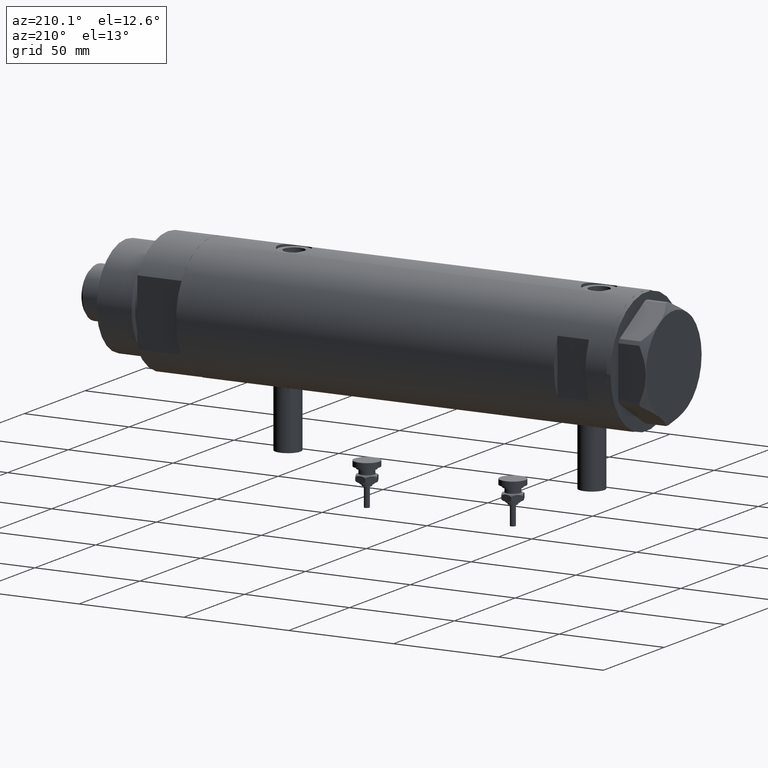
[diagram: clean part render]
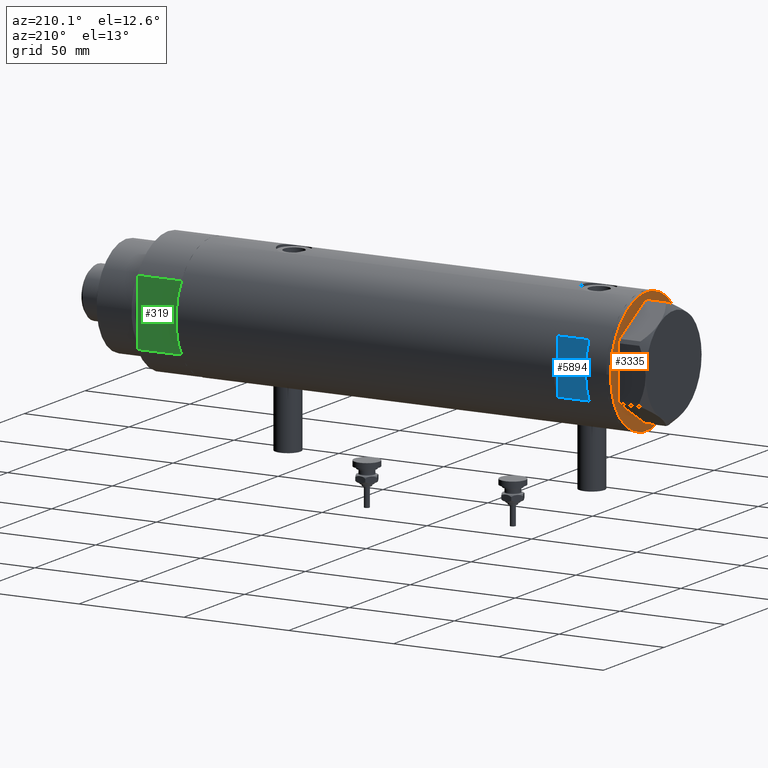
[diagram: same view with three faces highlighted in distinct colors, each labeled with its STEP entity id]
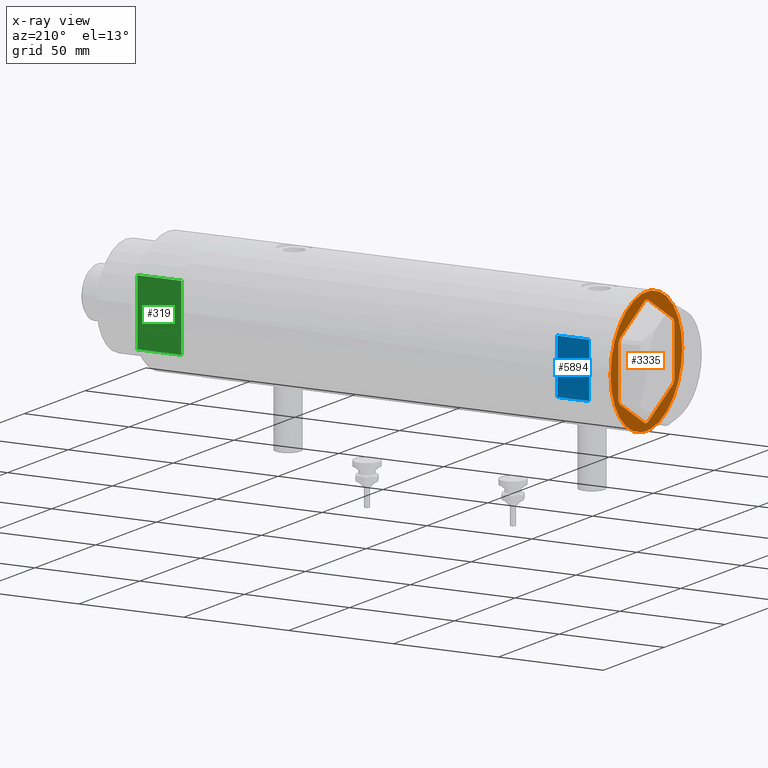
[diagram: x-ray of the same camera — body ghosted, the three highlighted faces saturated]
A machine part, auxiliary view with three faces highlighted in distinct colors.
The next image is the same camera in x-ray (body ghosted, the three faces saturated) — at least one of them is partly hidden behind the body in this view.
Their STEP definitions:

[orange] entity #3335 — the highlighted planar face has unit normal (1, 0, -0).
#26 = DIRECTION ( 'NONE',  ( 0.8660254037844345998, 0.5000000000000069944, 0.000000000000000000 ) ) ;
#56 = DIRECTION ( 'NONE',  ( 1.000000000000000000, 3.576939520802682722E-15, -0.000000000000000000 ) ) ;
#119 = CARTESIAN_POINT ( 'NONE',  ( -0.9699484522385893870, 25.99811238272273073, 0.000000000000000000 ) ) ;
#161 = CIRCLE ( 'NONE', #2635, 29.50000000000000355 ) ;
#218 = CARTESIAN_POINT ( 'NONE',  ( -22.51502577388055215, -12.99905619136159629, 0.000000000000000000 ) ) ;
#280 = VERTEX_POINT ( 'NONE', #383 ) ;
#332 = CARTESIAN_POINT ( 'NONE',  ( -22.51502577388069781, 12.99905619136134050, 0.000000000000000000 ) ) ;
#341 = CARTESIAN_POINT ( 'NONE',  ( -22.99999999999999289, 12.15905619136131754, 0.000000000000000000 ) ) ;
#358 = EDGE_CURVE ( 'NONE', #1223, #2414, #1478, .T. ) ;
#381 = VECTOR ( 'NONE', #26, 999.9999999999998863 ) ;
#383 = CARTESIAN_POINT ( 'NONE',  ( 23.00000000000007461, -12.15905619136117721, 0.000000000000000000 ) ) ;
#564 = DIRECTION ( 'NONE',  ( 0.000000000000000000, 0.000000000000000000, -1.000000000000000000 ) ) ;
#660 = DIRECTION ( 'NONE',  ( -1.032024811306395780E-14, 1.000000000000000000, 0.000000000000000000 ) ) ;
#666 = CARTESIAN_POINT ( 'NONE',  ( 29.50000000000000355, 0.000000000000000000, 0.000000000000000000 ) ) ;
#685 = CARTESIAN_POINT ( 'NONE',  ( 0.000000000000000000, 0.000000000000000000, 0.000000000000000000 ) ) ;
#710 = ORIENTED_EDGE ( 'NONE', *, *, #2628, .T. ) ;
#730 = VERTEX_POINT ( 'NONE', #5211 ) ;
#736 = EDGE_CURVE ( 'NONE', #1748, #2856, #3399, .T. ) ;
#758 = CARTESIAN_POINT ( 'NONE',  ( 22.51502577388080795, -12.99905619136115398, 0.000000000000000000 ) ) ;
#770 = PLANE ( 'NONE',  #2689 ) ;
#785 = CARTESIAN_POINT ( 'NONE',  ( -22.03005154776141339, 13.83905619136132792, 0.000000000000000000 ) ) ;
#817 = LINE ( 'NONE', #332, #3166 ) ;
#856 = EDGE_CURVE ( 'NONE', #5147, #4534, #817, .T. ) ;
#872 = VECTOR ( 'NONE', #660, 1000.000000000000000 ) ;
#1010 = CARTESIAN_POINT ( 'NONE',  ( -9.299367564803055752E-14, 25.99811238272273428, 0.000000000000000000 ) ) ;
#1058 = DIRECTION ( 'NONE',  ( 0.000000000000000000, 0.000000000000000000, -1.000000000000000000 ) ) ;
#1073 = CARTESIAN_POINT ( 'NONE',  ( 22.03005154776153773, -13.83905619136115561, 0.000000000000000000 ) ) ;
#1101 = CARTESIAN_POINT ( 'NONE',  ( 22.99999999999981171, 13.27905619136164184, 0.000000000000000000 ) ) ;
#1112 = DIRECTION ( 'NONE',  ( 0.000000000000000000, 0.000000000000000000, -1.000000000000000000 ) ) ;
#1185 = CARTESIAN_POINT ( 'NONE',  ( 0.9699484522387533669, -25.99811238272273428, 0.000000000000000000 ) ) ;
#1192 = EDGE_CURVE ( 'NONE', #280, #3393, #4356, .T. ) ;
#1216 = VERTEX_POINT ( 'NONE', #5295 ) ;
#1223 = VERTEX_POINT ( 'NONE', #1185 ) ;
#1430 = EDGE_CURVE ( 'NONE', #4836, #2856, #2297, .T. ) ;
#1449 = EDGE_CURVE ( 'NONE', #1748, #3393, #5140, .T. ) ;
#1475 = VECTOR ( 'NONE', #5493, 1000.000000000000227 ) ;
#1478 = LINE ( 'NONE', #5027, #381 ) ;
#1483 = DIRECTION ( 'NONE',  ( -1.000000000000000000, 0.000000000000000000, 0.000000000000000000 ) ) ;
#1510 = CARTESIAN_POINT ( 'NONE',  ( 0.000000000000000000, 0.000000000000000000, 0.000000000000000000 ) ) ;
#1580 = LINE ( 'NONE', #2726, #5173 ) ;
#1606 = EDGE_CURVE ( 'NONE', #3618, #5374, #4505, .T. ) ;
#1649 = ORIENTED_EDGE ( 'NONE', *, *, #1449, .T. ) ;
#1681 = DIRECTION ( 'NONE',  ( -0.4999999999999915623, -0.8660254037844434816, -0.000000000000000000 ) ) ;
#1687 = LINE ( 'NONE', #3517, #4212 ) ;
#1701 = VECTOR ( 'NONE', #3864, 1000.000000000000000 ) ;
#1748 = VERTEX_POINT ( 'NONE', #2231 ) ;
#1849 = ORIENTED_EDGE ( 'NONE', *, *, #2260, .F. ) ;
#1869 = DIRECTION ( 'NONE',  ( -1.000000000000000000, 0.000000000000000000, -0.000000000000000000 ) ) ;
#1876 = CARTESIAN_POINT ( 'NONE',  ( 0.9699484522385886098, 25.99811238272273783, 0.000000000000000000 ) ) ;
#1882 = LINE ( 'NONE', #5093, #1475 ) ;
#1991 = CARTESIAN_POINT ( 'NONE',  ( 22.99999999999982236, 12.15905619136166571, 0.000000000000000000 ) ) ;
#2104 = CARTESIAN_POINT ( 'NONE',  ( -0.9699484522383873264, -25.99811238272275205, 0.000000000000000000 ) ) ;
#2146 = EDGE_CURVE ( 'NONE', #280, #2414, #4860, .T. ) ;
#2231 = CARTESIAN_POINT ( 'NONE',  ( 22.03005154776124996, 13.83905619136162635, 0.000000000000000000 ) ) ;
#2256 = ORIENTED_EDGE ( 'NONE', *, *, #856, .T. ) ;
#2260 = EDGE_CURVE ( 'NONE', #1216, #3334, #3625, .T. ) ;
#2297 = LINE ( 'NONE', #1010, #4878 ) ;
#2414 = VERTEX_POINT ( 'NONE', #1073 ) ;
#2484 = LINE ( 'NONE', #218, #1701 ) ;
#2628 = EDGE_CURVE ( 'NONE', #1223, #3334, #1687, .T. ) ;
#2635 = AXIS2_PLACEMENT_3D ( 'NONE', #685, #564, #1483 ) ;
#2689 = AXIS2_PLACEMENT_3D ( 'NONE', #1510, #1058, #1869 ) ;
#2726 = CARTESIAN_POINT ( 'NONE',  ( -22.99999999999999645, 13.27905619136132032, 0.000000000000000000 ) ) ;
#2816 = EDGE_CURVE ( 'NONE', #5147, #730, #1580, .T. ) ;
#2856 = VERTEX_POINT ( 'NONE', #1876 ) ;
#2892 = DIRECTION ( 'NONE',  ( -1.000000000000000000, 0.000000000000000000, 0.000000000000000000 ) ) ;
#2908 = DIRECTION ( 'NONE',  ( -0.8660254037844415942, 0.4999999999999949485, 0.000000000000000000 ) ) ;
#2966 = ORIENTED_EDGE ( 'NONE', *, *, #1430, .T. ) ;
#2973 = ORIENTED_EDGE ( 'NONE', *, *, #5706, .T. ) ;
#3072 = VECTOR ( 'NONE', #4146, 999.9999999999998863 ) ;
#3166 = VECTOR ( 'NONE', #5763, 1000.000000000000227 ) ;
#3334 = VERTEX_POINT ( 'NONE', #2104 ) ;
#3335 = ADVANCED_FACE ( 'NONE', ( #3936, #5316 ), #770, .F. ) ;
#3393 = VERTEX_POINT ( 'NONE', #1991 ) ;
#3399 = LINE ( 'NONE', #1101, #5834 ) ;
#3491 = CARTESIAN_POINT ( 'NONE',  ( 0.000000000000000000, 0.000000000000000000, 0.000000000000000000 ) ) ;
#3517 = CARTESIAN_POINT ( 'NONE',  ( 1.859873512960652550E-13, -25.99811238272274139, 0.000000000000000000 ) ) ;
#3618 = VERTEX_POINT ( 'NONE', #4794 ) ;
#3625 = LINE ( 'NONE', #4156, #3925 ) ;
#3665 = ORIENTED_EDGE ( 'NONE', *, *, #1606, .F. ) ;
#3708 = DIRECTION ( 'NONE',  ( 0.8660254037844415942, -0.4999999999999950595, 0.000000000000000000 ) ) ;
#3759 = ORIENTED_EDGE ( 'NONE', *, *, #2146, .T. ) ;
#3864 = DIRECTION ( 'NONE',  ( -0.5000000000000086597, 0.8660254037844337116, -0.000000000000000000 ) ) ;
#3865 = ORIENTED_EDGE ( 'NONE', *, *, #358, .F. ) ;
#3925 = VECTOR ( 'NONE', #3708, 1000.000000000000000 ) ;
#3936 = FACE_BOUND ( 'NONE', #4072, .T. ) ;
#4067 = ORIENTED_EDGE ( 'NONE', *, *, #2816, .F. ) ;
#4072 = EDGE_LOOP ( 'NONE', ( #4165, #1649, #5841, #3759, #3865, #710, #1849, #2973, #4067, #2256, #4583, #2966 ) ) ;
#4146 = DIRECTION ( 'NONE',  ( 0.5000000000000086597, -0.8660254037844337116, -0.000000000000000000 ) ) ;
#4156 = CARTESIAN_POINT ( 'NONE',  ( -22.99999999999990408, -13.27905619136147841, 0.000000000000000000 ) ) ;
#4165 = ORIENTED_EDGE ( 'NONE', *, *, #736, .F. ) ;
#4212 = VECTOR ( 'NONE', #5345, 1000.000000000000000 ) ;
#4356 = LINE ( 'NONE', #5718, #872 ) ;
#4505 = CIRCLE ( 'NONE', #5563, 29.50000000000000355 ) ;
#4513 = VECTOR ( 'NONE', #1681, 1000.000000000000000 ) ;
#4534 = VERTEX_POINT ( 'NONE', #785 ) ;
#4553 = DIRECTION ( 'NONE',  ( 3.527173405730720141E-15, -1.000000000000000000, 0.000000000000000000 ) ) ;
#4583 = ORIENTED_EDGE ( 'NONE', *, *, #4785, .F. ) ;
#4785 = EDGE_CURVE ( 'NONE', #4836, #4534, #1882, .T. ) ;
#4794 = CARTESIAN_POINT ( 'NONE',  ( -29.50000000000000355, 3.612708057484692393E-15, 0.000000000000000000 ) ) ;
#4836 = VERTEX_POINT ( 'NONE', #119 ) ;
#4860 = LINE ( 'NONE', #758, #4513 ) ;
#4878 = VECTOR ( 'NONE', #56, 1000.000000000000000 ) ;
#5003 = EDGE_LOOP ( 'NONE', ( #5592, #3665 ) ) ;
#5027 = CARTESIAN_POINT ( 'NONE',  ( 1.854543075583504180E-13, -26.55811238272274366, 0.000000000000000000 ) ) ;
#5093 = CARTESIAN_POINT ( 'NONE',  ( 0.000000000000000000, 26.55811238272274366, 0.000000000000000000 ) ) ;
#5140 = LINE ( 'NONE', #5571, #3072 ) ;
#5147 = VERTEX_POINT ( 'NONE', #341 ) ;
#5173 = VECTOR ( 'NONE', #4553, 1000.000000000000000 ) ;
#5211 = CARTESIAN_POINT ( 'NONE',  ( -22.99999999999990763, -12.15905619136148985, 0.000000000000000000 ) ) ;
#5295 = CARTESIAN_POINT ( 'NONE',  ( -22.03005154776132102, -13.83905619136147536, 0.000000000000000000 ) ) ;
#5316 = FACE_OUTER_BOUND ( 'NONE', #5003, .T. ) ;
#5345 = DIRECTION ( 'NONE',  ( -1.000000000000000000, -7.153879041605523216E-15, -0.000000000000000000 ) ) ;
#5374 = VERTEX_POINT ( 'NONE', #666 ) ;
#5493 = DIRECTION ( 'NONE',  ( -0.8660254037844380415, -0.5000000000000008882, 0.000000000000000000 ) ) ;
#5563 = AXIS2_PLACEMENT_3D ( 'NONE', #3491, #1112, #2892 ) ;
#5571 = CARTESIAN_POINT ( 'NONE',  ( 22.51502577388055926, 12.99905619136160162, 0.000000000000000000 ) ) ;
#5592 = ORIENTED_EDGE ( 'NONE', *, *, #5761, .F. ) ;
#5706 = EDGE_CURVE ( 'NONE', #1216, #730, #2484, .T. ) ;
#5718 = CARTESIAN_POINT ( 'NONE',  ( 23.00000000000008527, -13.27905619136115867, 0.000000000000000000 ) ) ;
#5761 = EDGE_CURVE ( 'NONE', #5374, #3618, #161, .T. ) ;
#5763 = DIRECTION ( 'NONE',  ( 0.4999999999999986677, 0.8660254037844392627, -0.000000000000000000 ) ) ;
#5834 = VECTOR ( 'NONE', #2908, 999.9999999999998863 ) ;
#5841 = ORIENTED_EDGE ( 'NONE', *, *, #1192, .F. ) ;

[blue] entity #5894 — the highlighted planar face has unit normal (0, -1, -0).
#39 = EDGE_CURVE ( 'NONE', #2123, #5801, #963, .T. ) ;
#134 = LINE ( 'NONE', #1142, #5722 ) ;
#343 = DIRECTION ( 'NONE',  ( 0.000000000000000000, 0.000000000000000000, -1.000000000000000000 ) ) ;
#412 = CARTESIAN_POINT ( 'NONE',  ( -12.96148139681573319, 26.49999999999998934, 92.59999999999999432 ) ) ;
#715 = DIRECTION ( 'NONE',  ( 1.000000000000000000, -0.000000000000000000, -0.000000000000000000 ) ) ;
#882 = CARTESIAN_POINT ( 'NONE',  ( -12.96148139681573319, 26.49999999999999645, -102.5999999999999943 ) ) ;
#934 = CARTESIAN_POINT ( 'NONE',  ( 12.96148139681573319, 26.49999999999999645, -102.5999999999999943 ) ) ;
#961 = VECTOR ( 'NONE', #2754, 1000.000000000000000 ) ;
#963 = LINE ( 'NONE', #934, #961 ) ;
#1139 = VERTEX_POINT ( 'NONE', #2988 ) ;
#1142 = CARTESIAN_POINT ( 'NONE',  ( -29.50000000000000355, 26.50000000000000355, 92.59999999999999432 ) ) ;
#1561 = ORIENTED_EDGE ( 'NONE', *, *, #5576, .T. ) ;
#1677 = VERTEX_POINT ( 'NONE', #412 ) ;
#1728 = DIRECTION ( 'NONE',  ( 1.000000000000000000, -0.000000000000000000, -0.000000000000000000 ) ) ;
#2064 = EDGE_CURVE ( 'NONE', #1139, #1677, #3509, .T. ) ;
#2123 = VERTEX_POINT ( 'NONE', #5404 ) ;
#2162 = VECTOR ( 'NONE', #1728, 1000.000000000000000 ) ;
#2207 = VECTOR ( 'NONE', #4045, 1000.000000000000000 ) ;
#2514 = EDGE_LOOP ( 'NONE', ( #4305, #4353, #3501, #1561 ) ) ;
#2580 = FACE_OUTER_BOUND ( 'NONE', #2514, .T. ) ;
#2671 = DIRECTION ( 'NONE',  ( 0.000000000000000000, -1.000000000000000000, -0.000000000000000000 ) ) ;
#2754 = DIRECTION ( 'NONE',  ( -0.000000000000000000, -0.000000000000000000, -1.000000000000000000 ) ) ;
#2988 = CARTESIAN_POINT ( 'NONE',  ( -12.96148139681574030, 26.50000000000000355, 77.59999999999999432 ) ) ;
#3210 = LINE ( 'NONE', #5923, #2162 ) ;
#3322 = AXIS2_PLACEMENT_3D ( 'NONE', #5863, #2671, #343 ) ;
#3501 = ORIENTED_EDGE ( 'NONE', *, *, #2064, .T. ) ;
#3509 = LINE ( 'NONE', #882, #2207 ) ;
#3969 = CARTESIAN_POINT ( 'NONE',  ( 12.96148139681571898, 26.50000000000000355, 77.59999999999999432 ) ) ;
#4045 = DIRECTION ( 'NONE',  ( 0.000000000000000000, 0.000000000000000000, 1.000000000000000000 ) ) ;
#4305 = ORIENTED_EDGE ( 'NONE', *, *, #39, .T. ) ;
#4353 = ORIENTED_EDGE ( 'NONE', *, *, #5830, .F. ) ;
#5404 = CARTESIAN_POINT ( 'NONE',  ( 12.96148139681573319, 26.49999999999998934, 92.59999999999999432 ) ) ;
#5576 = EDGE_CURVE ( 'NONE', #1677, #2123, #134, .T. ) ;
#5722 = VECTOR ( 'NONE', #715, 1000.000000000000000 ) ;
#5801 = VERTEX_POINT ( 'NONE', #3969 ) ;
#5827 = PLANE ( 'NONE',  #3322 ) ;
#5830 = EDGE_CURVE ( 'NONE', #1139, #5801, #3210, .T. ) ;
#5863 = CARTESIAN_POINT ( 'NONE',  ( -29.50000000000000355, 26.50000000000000355, 92.59999999999999432 ) ) ;
#5894 = ADVANCED_FACE ( 'NONE', ( #2580 ), #5827, .F. ) ;
#5923 = CARTESIAN_POINT ( 'NONE',  ( -29.50000000000000355, 26.50000000000000355, 77.59999999999999432 ) ) ;

[green] entity #319 — the highlighted planar face has unit normal (0, -1, -0).
#93 = DIRECTION ( 'NONE',  ( 1.000000000000000000, 0.000000000000000000, 0.000000000000000000 ) ) ;
#216 = CARTESIAN_POINT ( 'NONE',  ( 15.66045976336583401, 25.00000000000000000, 0.000000000000000000 ) ) ;
#284 = CARTESIAN_POINT ( 'NONE',  ( 7.141428428542853091, 25.00000000000000000, 0.000000000000000000 ) ) ;
#319 = ADVANCED_FACE ( 'NONE', ( #593 ), #1907, .F. ) ;
#379 = ORIENTED_EDGE ( 'NONE', *, *, #5016, .F. ) ;
#504 = CARTESIAN_POINT ( 'NONE',  ( -15.66045976336583401, 25.00000000000000000, 0.000000000000000000 ) ) ;
#531 = VECTOR ( 'NONE', #1473, 1000.000000000000000 ) ;
#571 = VECTOR ( 'NONE', #1419, 1000.000000000000000 ) ;
#593 = FACE_OUTER_BOUND ( 'NONE', #634, .T. ) ;
#603 = VERTEX_POINT ( 'NONE', #284 ) ;
#608 = VERTEX_POINT ( 'NONE', #3138 ) ;
#619 = CARTESIAN_POINT ( 'NONE',  ( -15.66045976336583401, 25.00000000000000000, 0.000000000000000000 ) ) ;
#634 = EDGE_LOOP ( 'NONE', ( #5071, #4611, #1124, #4377, #379, #4851 ) ) ;
#654 = EDGE_CURVE ( 'NONE', #2133, #3047, #2287, .T. ) ;
#670 = AXIS2_PLACEMENT_3D ( 'NONE', #504, #5083, #983 ) ;
#983 = DIRECTION ( 'NONE',  ( 0.000000000000000000, -0.000000000000000000, -1.000000000000000000 ) ) ;
#1124 = ORIENTED_EDGE ( 'NONE', *, *, #2202, .F. ) ;
#1195 = CARTESIAN_POINT ( 'NONE',  ( -15.66045976336583401, 25.00000000000000000, 0.000000000000000000 ) ) ;
#1419 = DIRECTION ( 'NONE',  ( -0.000000000000000000, -0.000000000000000000, 1.000000000000000000 ) ) ;
#1473 = DIRECTION ( 'NONE',  ( 1.000000000000000000, 0.000000000000000000, 0.000000000000000000 ) ) ;
#1637 = VECTOR ( 'NONE', #93, 1000.000000000000000 ) ;
#1702 = CARTESIAN_POINT ( 'NONE',  ( -15.66045976336583045, 24.99999999999999645, 21.00000000000000355 ) ) ;
#1887 = LINE ( 'NONE', #5066, #1637 ) ;
#1907 = PLANE ( 'NONE',  #670 ) ;
#2133 = VERTEX_POINT ( 'NONE', #1195 ) ;
#2202 = EDGE_CURVE ( 'NONE', #603, #4891, #1887, .T. ) ;
#2287 = LINE ( 'NONE', #3743, #571 ) ;
#2337 = EDGE_CURVE ( 'NONE', #5244, #603, #2450, .T. ) ;
#2425 = DIRECTION ( 'NONE',  ( -0.000000000000000000, -0.000000000000000000, 1.000000000000000000 ) ) ;
#2430 = LINE ( 'NONE', #619, #531 ) ;
#2450 = LINE ( 'NONE', #5727, #3731 ) ;
#2504 = VECTOR ( 'NONE', #2425, 1000.000000000000000 ) ;
#2540 = LINE ( 'NONE', #3002, #4220 ) ;
#3002 = CARTESIAN_POINT ( 'NONE',  ( -15.66045976336583401, 25.00000000000000000, 21.00000000000000000 ) ) ;
#3047 = VERTEX_POINT ( 'NONE', #1702 ) ;
#3138 = CARTESIAN_POINT ( 'NONE',  ( 15.66045976336583045, 24.99999999999999645, 20.99999999999999645 ) ) ;
#3572 = CARTESIAN_POINT ( 'NONE',  ( -7.141428428542853091, 25.00000000000000000, 0.000000000000000000 ) ) ;
#3594 = EDGE_CURVE ( 'NONE', #3047, #608, #2540, .T. ) ;
#3655 = EDGE_CURVE ( 'NONE', #4891, #608, #4311, .T. ) ;
#3731 = VECTOR ( 'NONE', #4278, 1000.000000000000000 ) ;
#3743 = CARTESIAN_POINT ( 'NONE',  ( -15.66045976336583401, 25.00000000000000000, 0.000000000000000000 ) ) ;
#4220 = VECTOR ( 'NONE', #5271, 1000.000000000000000 ) ;
#4278 = DIRECTION ( 'NONE',  ( 1.000000000000000000, 0.000000000000000000, 0.000000000000000000 ) ) ;
#4311 = LINE ( 'NONE', #216, #2504 ) ;
#4377 = ORIENTED_EDGE ( 'NONE', *, *, #2337, .F. ) ;
#4611 = ORIENTED_EDGE ( 'NONE', *, *, #3655, .F. ) ;
#4851 = ORIENTED_EDGE ( 'NONE', *, *, #654, .T. ) ;
#4891 = VERTEX_POINT ( 'NONE', #5425 ) ;
#5016 = EDGE_CURVE ( 'NONE', #2133, #5244, #2430, .T. ) ;
#5066 = CARTESIAN_POINT ( 'NONE',  ( -15.66045976336583401, 25.00000000000000000, 0.000000000000000000 ) ) ;
#5071 = ORIENTED_EDGE ( 'NONE', *, *, #3594, .T. ) ;
#5083 = DIRECTION ( 'NONE',  ( 0.000000000000000000, -1.000000000000000000, 0.000000000000000000 ) ) ;
#5244 = VERTEX_POINT ( 'NONE', #3572 ) ;
#5271 = DIRECTION ( 'NONE',  ( 1.000000000000000000, 0.000000000000000000, 0.000000000000000000 ) ) ;
#5425 = CARTESIAN_POINT ( 'NONE',  ( 15.66045976336582690, 25.00000000000000000, 0.000000000000000000 ) ) ;
#5727 = CARTESIAN_POINT ( 'NONE',  ( -15.66045976336583401, 25.00000000000000000, 0.000000000000000000 ) ) ;